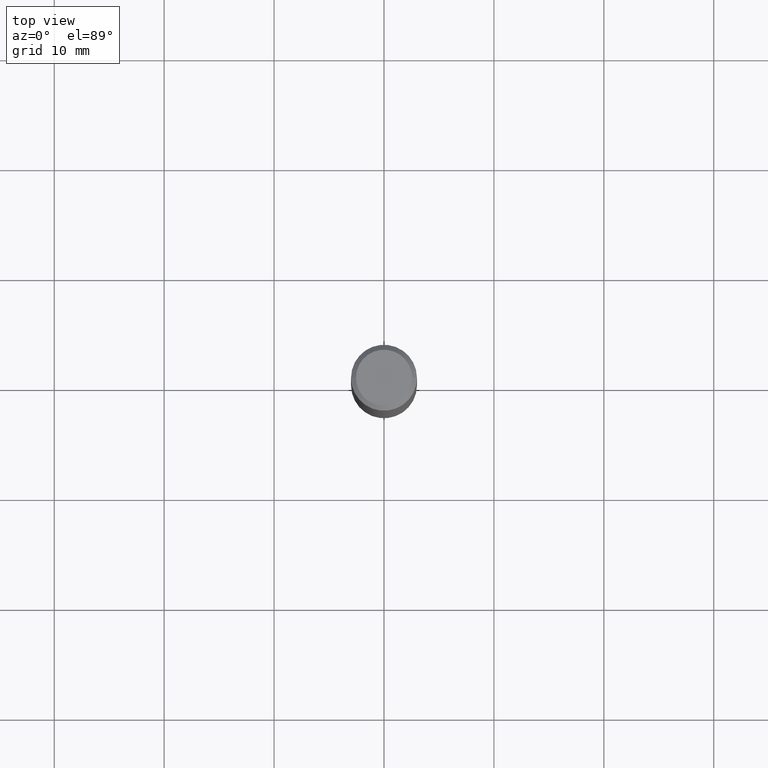
[diagram: clean part render]
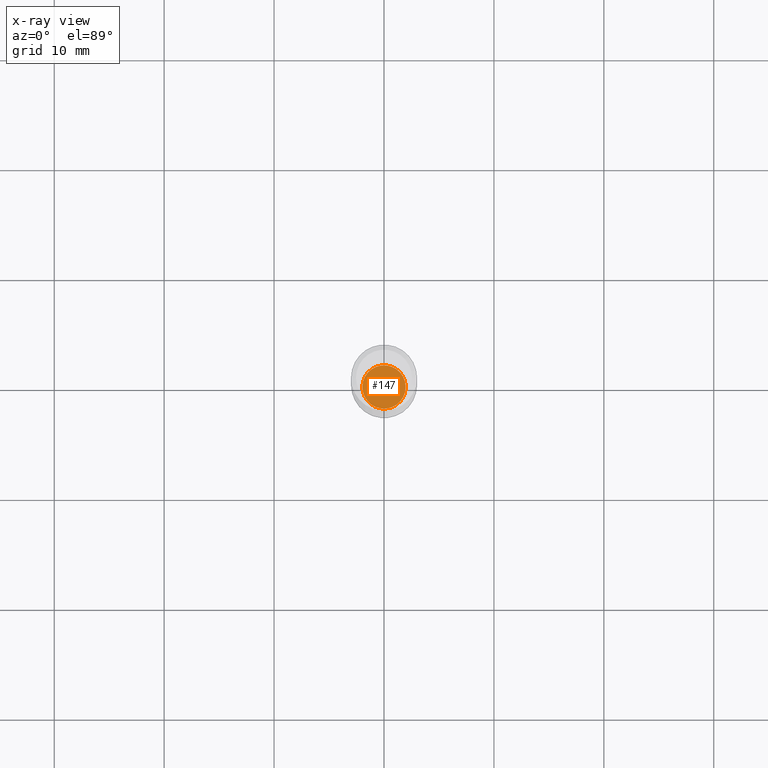
[diagram: x-ray — body ghosted, one internal face saturated and labeled with its STEP entity id]
A machine part, top view, then the same camera in x-ray: the body is ghosted and one INTERNAL B-rep face — a face not visible from any outside direction — is saturated and labeled: STEP entity #147.
In plain terms, the highlighted planar face has unit normal (-0, 0, 1).
Its self-contained STEP definition (entity closure, byte-faithful):
#43 = DIRECTION ( 'NONE',  ( -2.445468806185136597E-29, 3.491481338843145583E-15, 1.000000000000000000 ) ) ;
#46 = DIRECTION ( 'NONE',  ( 1.000000000000000000, -6.982962677686260400E-15, 0.000000000000000000 ) ) ;
#49 = DIRECTION ( 'NONE',  ( 1.000000000000000000, -6.982962677686265922E-15, 4.876176775795935793E-29 ) ) ;
#57 = CARTESIAN_POINT ( 'NONE',  ( -0.07760000000000000231, -6.181386260638362742E-15, -1.929099999999999815 ) ) ;
#145 = CARTESIAN_POINT ( 'NONE',  ( 0.07760000000000000231, -7.277294554550764556E-15, -1.929099999999999815 ) ) ;
#147 = ADVANCED_FACE ( 'NONE', ( #324 ), #472, .F. ) ;
#153 = EDGE_CURVE ( 'NONE', #367, #263, #161, .T. ) ;
#161 = CIRCLE ( 'NONE', #322, 0.07760000000000000231 ) ;
#165 = ORIENTED_EDGE ( 'NONE', *, *, #153, .F. ) ;
#172 = CARTESIAN_POINT ( 'NONE',  ( 4.717553874011746679E-29, -6.735416650762311704E-15, -1.929099999999999815 ) ) ;
#206 = DIRECTION ( 'NONE',  ( 1.000000000000000000, -6.982962677686260400E-15, 0.000000000000000000 ) ) ;
#221 = EDGE_CURVE ( 'NONE', #263, #367, #468, .T. ) ;
#263 = VERTEX_POINT ( 'NONE', #57 ) ;
#280 = DIRECTION ( 'NONE',  ( -2.438088387897960049E-29, 3.491481338843145188E-15, 1.000000000000000000 ) ) ;
#322 = AXIS2_PLACEMENT_3D ( 'NONE', #470, #352, #206 ) ;
#324 = FACE_OUTER_BOUND ( 'NONE', #450, .T. ) ;
#348 = AXIS2_PLACEMENT_3D ( 'NONE', #359, #43, #46 ) ;
#352 = DIRECTION ( 'NONE',  ( -2.445468806185136597E-29, 3.491481338843145583E-15, 1.000000000000000000 ) ) ;
#359 = CARTESIAN_POINT ( 'NONE',  ( 4.717553874011746679E-29, -6.735416650762311704E-15, -1.929099999999999815 ) ) ;
#367 = VERTEX_POINT ( 'NONE', #145 ) ;
#393 = ORIENTED_EDGE ( 'NONE', *, *, #221, .F. ) ;
#450 = EDGE_LOOP ( 'NONE', ( #165, #393 ) ) ;
#451 = AXIS2_PLACEMENT_3D ( 'NONE', #172, #280, #49 ) ;
#468 = CIRCLE ( 'NONE', #348, 0.07760000000000000231 ) ;
#470 = CARTESIAN_POINT ( 'NONE',  ( 4.717553874011746679E-29, -6.735416650762311704E-15, -1.929099999999999815 ) ) ;
#472 = PLANE ( 'NONE',  #451 ) ;